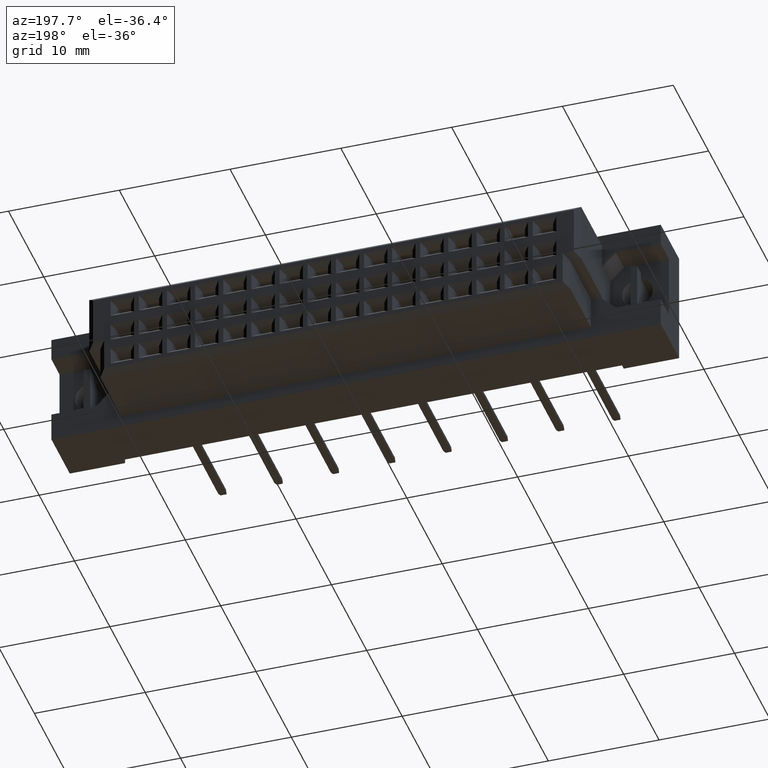
[diagram: clean part render]
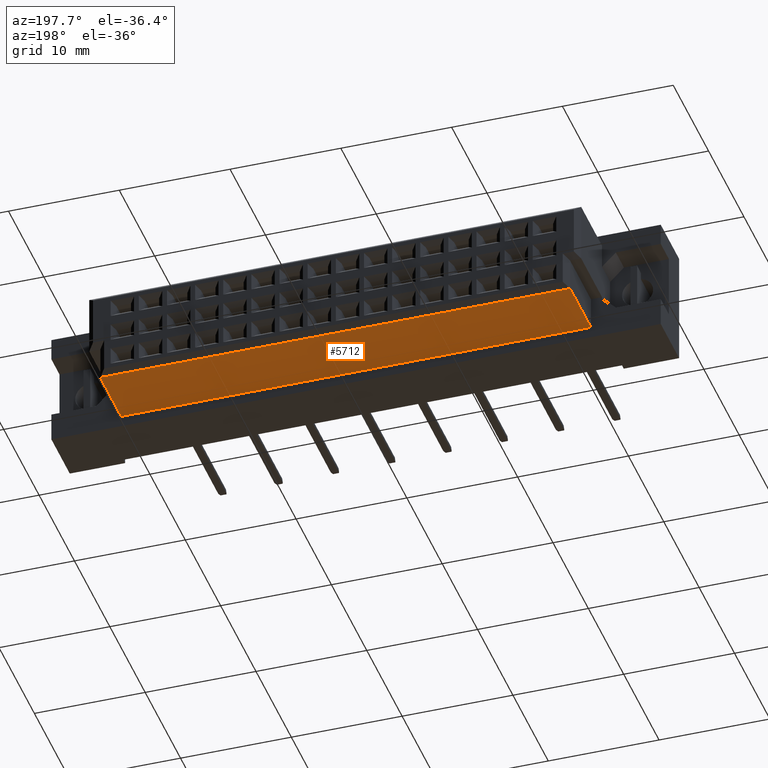
[diagram: same view with one face highlighted and labeled with its STEP entity id]
A machine part, auxiliary view. The second image highlights one B-rep face of the part: STEP entity #5712.
In plain terms, the highlighted planar face has unit normal (0, 0, -1).
Its self-contained STEP definition (entity closure, byte-faithful):
#135 = CARTESIAN_POINT ( 'NONE',  ( -21.19999999999998863, -6.400000000000000355, -4.250000000000000888 ) ) ;
#472 = CARTESIAN_POINT ( 'NONE',  ( 21.20000000000000284, -0.5000000000000143219, -4.250000000000000888 ) ) ;
#700 = VERTEX_POINT ( 'NONE', #12436 ) ;
#901 = CARTESIAN_POINT ( 'NONE',  ( 21.20000000000000284, -6.400000000000000355, -4.250000000000000888 ) ) ;
#1042 = DIRECTION ( 'NONE',  ( 1.000000000000000000, 0.0000000000000000000, 0.0000000000000000000 ) ) ;
#1253 = CARTESIAN_POINT ( 'NONE',  ( 21.20000000000000284, -0.5000000000000143219, -4.250000000000000888 ) ) ;
#1840 = CARTESIAN_POINT ( 'NONE',  ( 21.20000000000000284, -6.400000000000000355, -4.250000000000000888 ) ) ;
#1936 = ORIENTED_EDGE ( 'NONE', *, *, #14945, .T. ) ;
#2047 = LINE ( 'NONE', #1840, #19891 ) ;
#2305 = VERTEX_POINT ( 'NONE', #472 ) ;
#2707 = DIRECTION ( 'NONE',  ( -0.0000000000000000000, 0.0000000000000000000, -1.000000000000000000 ) ) ;
#4535 = ORIENTED_EDGE ( 'NONE', *, *, #12804, .T. ) ;
#5391 = VECTOR ( 'NONE', #7299, 1000.000000000000000 ) ;
#5712 = ADVANCED_FACE ( 'NONE', ( #9215 ), #17064, .T. ) ;
#6159 = DIRECTION ( 'NONE',  ( -1.000000000000000000, 0.0000000000000000000, 0.0000000000000000000 ) ) ;
#7299 = DIRECTION ( 'NONE',  ( -0.0000000000000000000, 1.000000000000000000, -0.0000000000000000000 ) ) ;
#7725 = LINE ( 'NONE', #1253, #11208 ) ;
#7727 = ORIENTED_EDGE ( 'NONE', *, *, #9978, .T. ) ;
#8161 = EDGE_LOOP ( 'NONE', ( #1936, #4535, #19433, #7727 ) ) ;
#8215 = VERTEX_POINT ( 'NONE', #901 ) ;
#8438 = DIRECTION ( 'NONE',  ( -0.0000000000000000000, 1.000000000000000000, -0.0000000000000000000 ) ) ;
#9215 = FACE_OUTER_BOUND ( 'NONE', #8161, .T. ) ;
#9563 = LINE ( 'NONE', #12493, #14417 ) ;
#9978 = EDGE_CURVE ( 'NONE', #8215, #9979, #9563, .T. ) ;
#9979 = VERTEX_POINT ( 'NONE', #135 ) ;
#10249 = LINE ( 'NONE', #10443, #5391 ) ;
#10443 = CARTESIAN_POINT ( 'NONE',  ( -21.19999999999998863, -6.400000000000000355, -4.250000000000000888 ) ) ;
#10673 = CARTESIAN_POINT ( 'NONE',  ( 22.19999999999999218, -6.400000000000001243, -4.250000000000000888 ) ) ;
#11208 = VECTOR ( 'NONE', #1042, 1000.000000000000000 ) ;
#12436 = CARTESIAN_POINT ( 'NONE',  ( -21.19999999999998863, -0.5000000000000143219, -4.250000000000000888 ) ) ;
#12493 = CARTESIAN_POINT ( 'NONE',  ( 22.19999999999999218, -6.400000000000001243, -4.250000000000000888 ) ) ;
#12542 = AXIS2_PLACEMENT_3D ( 'NONE', #10673, #2707, #6159 ) ;
#12804 = EDGE_CURVE ( 'NONE', #700, #2305, #7725, .T. ) ;
#14417 = VECTOR ( 'NONE', #17631, 1000.000000000000000 ) ;
#14945 = EDGE_CURVE ( 'NONE', #9979, #700, #10249, .T. ) ;
#16370 = EDGE_CURVE ( 'NONE', #8215, #2305, #2047, .T. ) ;
#17064 = PLANE ( 'NONE',  #12542 ) ;
#17631 = DIRECTION ( 'NONE',  ( -1.000000000000000000, 0.0000000000000000000, 0.0000000000000000000 ) ) ;
#19433 = ORIENTED_EDGE ( 'NONE', *, *, #16370, .F. ) ;
#19891 = VECTOR ( 'NONE', #8438, 1000.000000000000000 ) ;